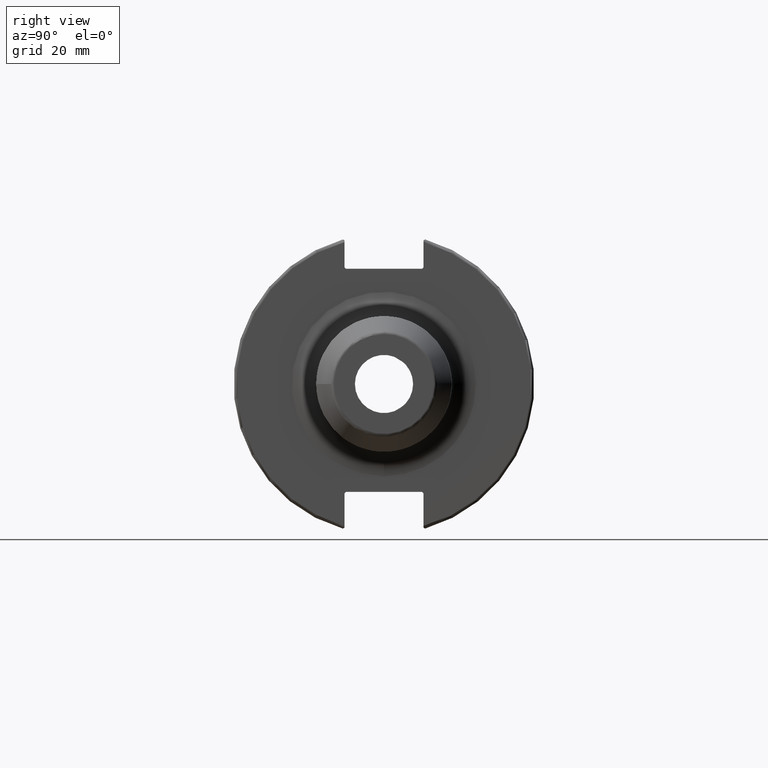
[diagram: clean part render]
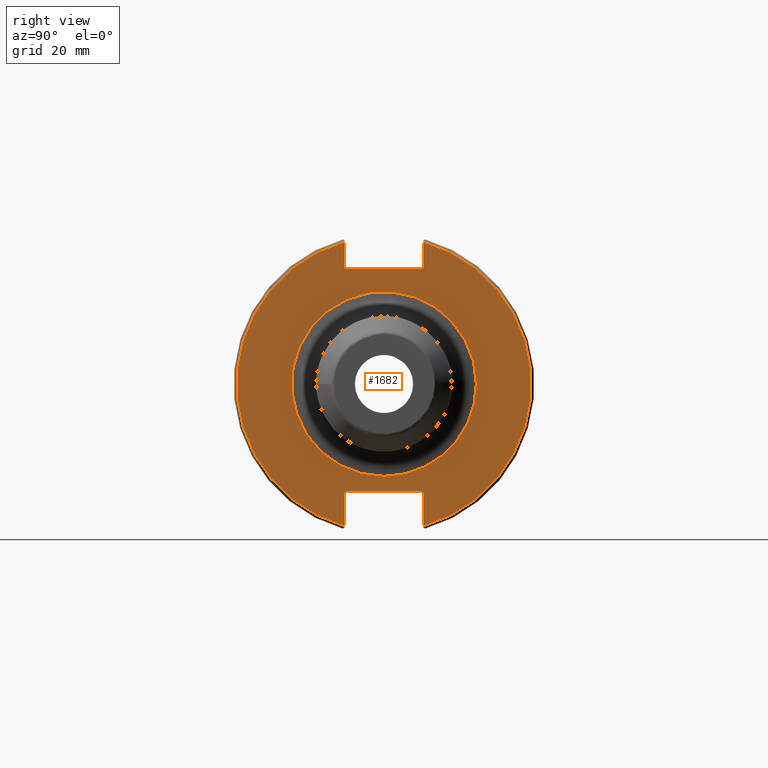
[diagram: same view with one face highlighted and labeled with its STEP entity id]
A machine part, right view. The second image highlights one B-rep face of the part: STEP entity #1682.
In plain terms, the highlighted planar face has unit normal (1, 0, 0).
Its self-contained STEP definition (entity closure, byte-faithful):
#58=FACE_BOUND('',#537,.T.);
#79=PLANE('',#1803);
#119=LINE('',#2662,#213);
#120=LINE('',#2664,#214);
#121=LINE('',#2666,#215);
#122=LINE('',#2668,#216);
#123=LINE('',#2670,#217);
#124=LINE('',#2674,#218);
#125=LINE('',#2676,#219);
#126=LINE('',#2678,#220);
#127=LINE('',#2680,#221);
#128=LINE('',#2681,#222);
#213=VECTOR('',#2032,10.);
#214=VECTOR('',#2033,10.);
#215=VECTOR('',#2034,10.);
#216=VECTOR('',#2035,10.);
#217=VECTOR('',#2036,10.);
#218=VECTOR('',#2039,10.);
#219=VECTOR('',#2040,10.);
#220=VECTOR('',#2041,10.);
#221=VECTOR('',#2042,10.);
#222=VECTOR('',#2043,10.);
#309=CIRCLE('',#1795,30.225);
#310=CIRCLE('',#1796,30.225);
#316=CIRCLE('',#1804,48.2125);
#317=CIRCLE('',#1805,48.2125);
#446=FACE_OUTER_BOUND('',#536,.T.);
#536=EDGE_LOOP('',(#1182,#1183,#1184,#1185,#1186,#1187,#1188,#1189,#1190,
#1191,#1192,#1193));
#537=EDGE_LOOP('',(#1194,#1195));
#696=VERTEX_POINT('',#2640);
#697=VERTEX_POINT('',#2642);
#702=VERTEX_POINT('',#2658);
#703=VERTEX_POINT('',#2659);
#704=VERTEX_POINT('',#2661);
#705=VERTEX_POINT('',#2663);
#706=VERTEX_POINT('',#2665);
#707=VERTEX_POINT('',#2667);
#708=VERTEX_POINT('',#2669);
#709=VERTEX_POINT('',#2671);
#710=VERTEX_POINT('',#2673);
#711=VERTEX_POINT('',#2675);
#712=VERTEX_POINT('',#2677);
#713=VERTEX_POINT('',#2679);
#889=EDGE_CURVE('',#696,#697,#309,.T.);
#890=EDGE_CURVE('',#697,#696,#310,.T.);
#898=EDGE_CURVE('',#702,#703,#316,.T.);
#899=EDGE_CURVE('',#702,#704,#119,.T.);
#900=EDGE_CURVE('',#705,#704,#120,.T.);
#901=EDGE_CURVE('',#705,#706,#121,.T.);
#902=EDGE_CURVE('',#707,#706,#122,.T.);
#903=EDGE_CURVE('',#707,#708,#123,.T.);
#904=EDGE_CURVE('',#709,#708,#317,.T.);
#905=EDGE_CURVE('',#709,#710,#124,.T.);
#906=EDGE_CURVE('',#711,#710,#125,.T.);
#907=EDGE_CURVE('',#711,#712,#126,.T.);
#908=EDGE_CURVE('',#713,#712,#127,.T.);
#909=EDGE_CURVE('',#713,#703,#128,.T.);
#1182=ORIENTED_EDGE('',*,*,#898,.F.);
#1183=ORIENTED_EDGE('',*,*,#899,.T.);
#1184=ORIENTED_EDGE('',*,*,#900,.F.);
#1185=ORIENTED_EDGE('',*,*,#901,.T.);
#1186=ORIENTED_EDGE('',*,*,#902,.F.);
#1187=ORIENTED_EDGE('',*,*,#903,.T.);
#1188=ORIENTED_EDGE('',*,*,#904,.F.);
#1189=ORIENTED_EDGE('',*,*,#905,.T.);
#1190=ORIENTED_EDGE('',*,*,#906,.F.);
#1191=ORIENTED_EDGE('',*,*,#907,.T.);
#1192=ORIENTED_EDGE('',*,*,#908,.F.);
#1193=ORIENTED_EDGE('',*,*,#909,.T.);
#1194=ORIENTED_EDGE('',*,*,#890,.F.);
#1195=ORIENTED_EDGE('',*,*,#889,.F.);
#1682=ADVANCED_FACE('',(#446,#58),#79,.T.);
#1795=AXIS2_PLACEMENT_3D('',#2643,#2010,#2011);
#1796=AXIS2_PLACEMENT_3D('',#2644,#2012,#2013);
#1803=AXIS2_PLACEMENT_3D('',#2657,#2028,#2029);
#1804=AXIS2_PLACEMENT_3D('',#2660,#2030,#2031);
#1805=AXIS2_PLACEMENT_3D('',#2672,#2037,#2038);
#2010=DIRECTION('center_axis',(1.,0.,0.));
#2011=DIRECTION('ref_axis',(0.,-1.,-1.22464679914735E-16));
#2012=DIRECTION('center_axis',(1.,0.,0.));
#2013=DIRECTION('ref_axis',(0.,-1.,-1.22464679914735E-16));
#2028=DIRECTION('center_axis',(1.,0.,0.));
#2029=DIRECTION('ref_axis',(0.,0.,-1.));
#2030=DIRECTION('center_axis',(-1.,0.,0.));
#2031=DIRECTION('ref_axis',(0.,1.,-6.12323399573677E-17));
#2032=DIRECTION('',(0.,0.,-1.));
#2033=DIRECTION('',(0.,0.707106781186549,0.707106781186546));
#2034=DIRECTION('',(0.,-1.,0.));
#2035=DIRECTION('',(0.,0.707106781186549,-0.707106781186546));
#2036=DIRECTION('',(0.,0.,1.));
#2037=DIRECTION('center_axis',(-1.,0.,0.));
#2038=DIRECTION('ref_axis',(0.,-1.,1.60812264967664E-16));
#2039=DIRECTION('',(0.,0.,1.));
#2040=DIRECTION('',(0.,-0.707106781186549,-0.707106781186546));
#2041=DIRECTION('',(0.,1.,0.));
#2042=DIRECTION('',(0.,-0.707106781186549,0.707106781186546));
#2043=DIRECTION('',(0.,0.,-1.));
#2640=CARTESIAN_POINT('',(19.05,-3.70149495042288E-15,-30.225));
#2642=CARTESIAN_POINT('',(19.05,30.225,7.40298990084575E-15));
#2643=CARTESIAN_POINT('Origin',(19.05,0.,0.));
#2644=CARTESIAN_POINT('Origin',(19.05,0.,0.));
#2657=CARTESIAN_POINT('Origin',(19.05,0.,0.));
#2658=CARTESIAN_POINT('',(19.05,12.95,46.4407434937254));
#2659=CARTESIAN_POINT('',(19.05,12.95,-46.4407434937254));
#2660=CARTESIAN_POINT('Origin',(19.05,0.,0.));
#2661=CARTESIAN_POINT('',(19.05,12.95,38.219));
#2662=CARTESIAN_POINT('',(19.05,12.95,18.8595));
#2663=CARTESIAN_POINT('',(19.05,12.45,37.719));
#2664=CARTESIAN_POINT('',(19.05,0.0327499999999836,25.30175));
#2665=CARTESIAN_POINT('',(19.05,-12.45,37.719));
#2666=CARTESIAN_POINT('',(19.05,0.,37.719));
#2667=CARTESIAN_POINT('',(19.05,-12.95,38.219));
#2668=CARTESIAN_POINT('',(19.05,-0.0327499999999817,25.30175));
#2669=CARTESIAN_POINT('',(19.05,-12.95,46.4407434937254));
#2670=CARTESIAN_POINT('',(19.05,-12.95,18.8595));
#2671=CARTESIAN_POINT('',(19.05,-12.95,-46.4407434937254));
#2672=CARTESIAN_POINT('Origin',(19.05,0.,0.));
#2673=CARTESIAN_POINT('',(19.05,-12.95,-35.806));
#2674=CARTESIAN_POINT('',(19.05,-12.95,-17.653));
#2675=CARTESIAN_POINT('',(19.05,-12.45,-35.306));
#2676=CARTESIAN_POINT('',(19.05,-0.635999999999989,-23.492));
#2677=CARTESIAN_POINT('',(19.05,12.45,-35.306));
#2678=CARTESIAN_POINT('',(19.05,-3.33066907387547E-15,-35.306));
#2679=CARTESIAN_POINT('',(19.05,12.95,-35.806));
#2680=CARTESIAN_POINT('',(19.05,0.635999999999982,-23.492));
#2681=CARTESIAN_POINT('',(19.05,12.95,-17.653));